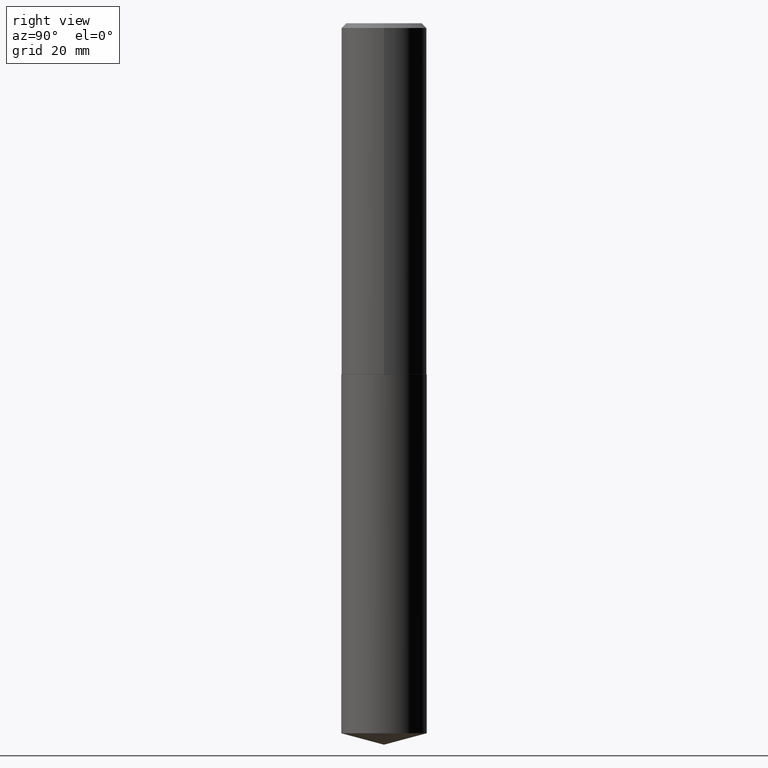
[diagram: clean part render]
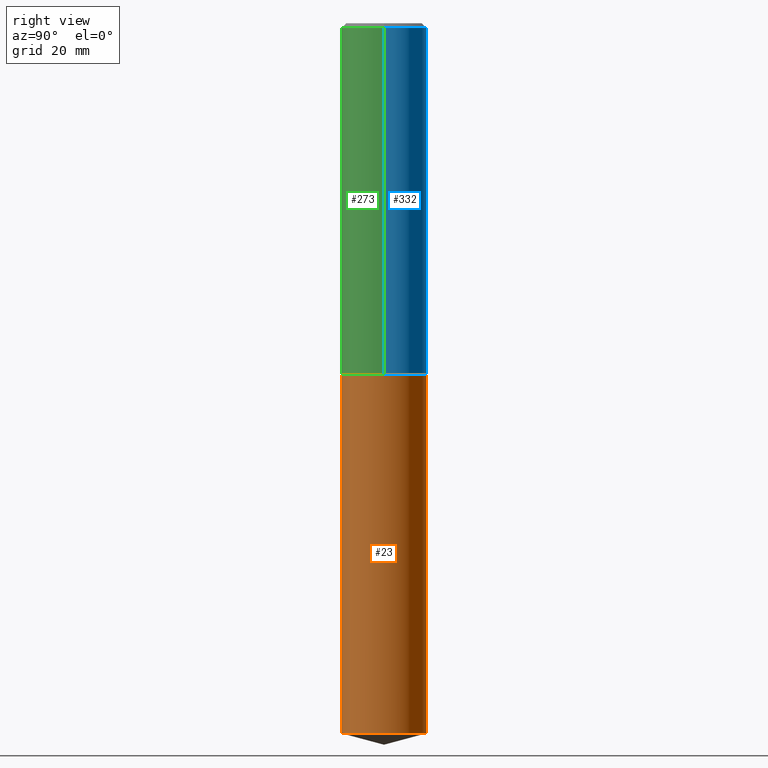
[diagram: same view with three faces highlighted in distinct colors, each labeled with its STEP entity id]
A machine part, right view with three faces highlighted in distinct colors.
Their STEP definitions:

[orange] entity #23 — the highlighted cylindrical surface (partial cylindrical patch) has radius 7.1437 mm, axis along (-0, 0, 1).
#4 = CIRCLE ( 'NONE', #105, 0.2812500000000000000 ) ;
#8 = LINE ( 'NONE', #282, #169 ) ;
#13 = VERTEX_POINT ( 'NONE', #80 ) ;
#15 = VERTEX_POINT ( 'NONE', #199 ) ;
#22 = CARTESIAN_POINT ( 'NONE',  ( 5.655146614303128380E-29, -8.074050596074775072E-15, -2.312500000000000000 ) ) ;
#23 = ADVANCED_FACE ( 'NONE', ( #55 ), #182, .T. ) ;
#30 = CARTESIAN_POINT ( 'NONE',  ( 5.655146614303128380E-29, -8.074050596074775072E-15, -2.312500000000000000 ) ) ;
#45 = EDGE_CURVE ( 'NONE', #236, #150, #4, .T. ) ;
#55 = FACE_OUTER_BOUND ( 'NONE', #79, .T. ) ;
#69 = DIRECTION ( 'NONE',  ( -6.982962677686266711E-15, -1.000000000000000000, 3.885294924322507688E-15 ) ) ;
#73 = EDGE_CURVE ( 'NONE', #150, #13, #191, .T. ) ;
#79 = EDGE_LOOP ( 'NONE', ( #144, #382, #296, #86 ) ) ;
#80 = CARTESIAN_POINT ( 'NONE',  ( 1.998401444325396158E-15, 0.2812499999999919509, -2.312500000000000888 ) ) ;
#86 = ORIENTED_EDGE ( 'NONE', *, *, #206, .F. ) ;
#87 = DIRECTION ( 'NONE',  ( -2.447055092570112405E-29, 3.489209686454046376E-15, 1.000000000000000000 ) ) ;
#91 = CARTESIAN_POINT ( 'NONE',  ( 1.998401444325338176E-15, 0.2812499999999919509, -2.312500000000000888 ) ) ;
#94 = EDGE_CURVE ( 'NONE', #15, #13, #161, .T. ) ;
#105 = AXIS2_PLACEMENT_3D ( 'NONE', #312, #87, #69 ) ;
#115 = DIRECTION ( 'NONE',  ( -2.447055092570112405E-29, 3.489209686454046376E-15, 1.000000000000000000 ) ) ;
#144 = ORIENTED_EDGE ( 'NONE', *, *, #45, .T. ) ;
#150 = VERTEX_POINT ( 'NONE', #340 ) ;
#158 = DIRECTION ( 'NONE',  ( -6.982962677686266711E-15, -1.000000000000000000, 3.885294924322507688E-15 ) ) ;
#161 = CIRCLE ( 'NONE', #209, 0.2812500000000000000 ) ;
#169 = VECTOR ( 'NONE', #366, 39.37007874015748143 ) ;
#182 = CYLINDRICAL_SURFACE ( 'NONE', #285, 0.2812500000000000000 ) ;
#191 = LINE ( 'NONE', #91, #232 ) ;
#199 = CARTESIAN_POINT ( 'NONE',  ( -1.963958253099205714E-15, -0.2812500000000080491, -2.312499999999999112 ) ) ;
#206 = EDGE_CURVE ( 'NONE', #236, #15, #8, .T. ) ;
#209 = AXIS2_PLACEMENT_3D ( 'NONE', #30, #248, #158 ) ;
#224 = CARTESIAN_POINT ( 'NONE',  ( -1.963958253099148128E-15, -0.2812500000000163203, -4.674639289628746752 ) ) ;
#232 = VECTOR ( 'NONE', #308, 39.37007874015748143 ) ;
#236 = VERTEX_POINT ( 'NONE', #224 ) ;
#248 = DIRECTION ( 'NONE',  ( -2.447055092570112405E-29, 3.489209686454046376E-15, 1.000000000000000000 ) ) ;
#282 = CARTESIAN_POINT ( 'NONE',  ( -1.963958253099205714E-15, -0.2812500000000080491, -2.312499999999999112 ) ) ;
#285 = AXIS2_PLACEMENT_3D ( 'NONE', #22, #115, #306 ) ;
#296 = ORIENTED_EDGE ( 'NONE', *, *, #94, .F. ) ;
#306 = DIRECTION ( 'NONE',  ( -6.982962677686266711E-15, -1.000000000000000000, 3.885294924322507688E-15 ) ) ;
#308 = DIRECTION ( 'NONE',  ( -2.447055092570112405E-29, 3.489209686454046771E-15, 1.000000000000000000 ) ) ;
#312 = CARTESIAN_POINT ( 'NONE',  ( 1.143543159234910269E-28, -1.631604988620107915E-14, -4.674639289628747640 ) ) ;
#340 = CARTESIAN_POINT ( 'NONE',  ( 1.998401444325395763E-15, 0.2812499999999836242, -4.674639289628748529 ) ) ;
#366 = DIRECTION ( 'NONE',  ( -2.447055092570112405E-29, 3.489209686454046771E-15, 1.000000000000000000 ) ) ;
#382 = ORIENTED_EDGE ( 'NONE', *, *, #73, .T. ) ;

[blue] entity #332 — the highlighted cylindrical surface (partial cylindrical patch) has radius 7.1438 mm, axis along (-0, 0, 1).
#1 = LINE ( 'NONE', #324, #167 ) ;
#2 = VERTEX_POINT ( 'NONE', #59 ) ;
#10 = DIRECTION ( 'NONE',  ( -2.445468806185136877E-29, 3.491481338843145188E-15, 1.000000000000000000 ) ) ;
#12 = FACE_OUTER_BOUND ( 'NONE', #100, .T. ) ;
#16 = EDGE_CURVE ( 'NONE', #2, #257, #1, .T. ) ;
#21 = ORIENTED_EDGE ( 'NONE', *, *, #16, .F. ) ;
#41 = CARTESIAN_POINT ( 'NONE',  ( -0.2812500000000003331, -6.073903411080069429E-15, -2.312000000000000277 ) ) ;
#52 = DIRECTION ( 'NONE',  ( -2.445468806185136877E-29, 3.491481338843145188E-15, 1.000000000000000000 ) ) ;
#59 = CARTESIAN_POINT ( 'NONE',  ( 0.2812500000000003331, -1.003626310850461766E-14, -2.312000000000000277 ) ) ;
#65 = DIRECTION ( 'NONE',  ( 1.000000000000000000, -6.982962677686265133E-15, 0.000000000000000000 ) ) ;
#68 = CARTESIAN_POINT ( 'NONE',  ( -0.2812500000000001665, 1.998401444325282956E-15, -1.383450494134193109E-29 ) ) ;
#72 = AXIS2_PLACEMENT_3D ( 'NONE', #185, #309, #155 ) ;
#74 = CYLINDRICAL_SURFACE ( 'NONE', #143, 0.2812500000000001665 ) ;
#76 = CARTESIAN_POINT ( 'NONE',  ( 0.2812500000000000000, -2.073067044938111613E-15, -0.03125000000000020123 ) ) ;
#95 = LINE ( 'NONE', #68, #325 ) ;
#100 = EDGE_LOOP ( 'NONE', ( #351, #301, #203, #21 ) ) ;
#101 = DIRECTION ( 'NONE',  ( -2.445468806185136597E-29, 3.491481338843145583E-15, 1.000000000000000000 ) ) ;
#130 = DIRECTION ( 'NONE',  ( 1.000000000000000000, -6.982962677686266711E-15, 4.876176775795936353E-29 ) ) ;
#143 = AXIS2_PLACEMENT_3D ( 'NONE', #299, #101, #130 ) ;
#148 = VERTEX_POINT ( 'NONE', #242 ) ;
#154 = CARTESIAN_POINT ( 'NONE',  ( 5.653923879900035579E-29, -8.072304855405352780E-15, -2.312000000000000277 ) ) ;
#155 = DIRECTION ( 'NONE',  ( 1.000000000000000000, -6.982962677686266711E-15, 0.000000000000000000 ) ) ;
#156 = CIRCLE ( 'NONE', #72, 0.2812500000000000000 ) ;
#157 = EDGE_CURVE ( 'NONE', #2, #241, #245, .T. ) ;
#167 = VECTOR ( 'NONE', #52, 39.37007874015748143 ) ;
#185 = CARTESIAN_POINT ( 'NONE',  ( 7.642090019328600035E-31, -1.091087918388489897E-16, -0.03125000000000020123 ) ) ;
#203 = ORIENTED_EDGE ( 'NONE', *, *, #204, .F. ) ;
#204 = EDGE_CURVE ( 'NONE', #257, #148, #156, .T. ) ;
#221 = EDGE_CURVE ( 'NONE', #241, #148, #95, .T. ) ;
#241 = VERTEX_POINT ( 'NONE', #41 ) ;
#242 = CARTESIAN_POINT ( 'NONE',  ( -0.2812500000000000000, -2.092305379296817195E-15, -0.03125000000000020123 ) ) ;
#245 = CIRCLE ( 'NONE', #293, 0.2812500000000003331 ) ;
#257 = VERTEX_POINT ( 'NONE', #76 ) ;
#278 = DIRECTION ( 'NONE',  ( -2.445468806185136597E-29, 3.491481338843145583E-15, 1.000000000000000000 ) ) ;
#293 = AXIS2_PLACEMENT_3D ( 'NONE', #154, #278, #65 ) ;
#299 = CARTESIAN_POINT ( 'NONE',  ( 0.000000000000000000, 0.000000000000000000, 0.000000000000000000 ) ) ;
#301 = ORIENTED_EDGE ( 'NONE', *, *, #221, .T. ) ;
#309 = DIRECTION ( 'NONE',  ( -2.445468806185136597E-29, 3.491481338843145583E-15, 1.000000000000000000 ) ) ;
#324 = CARTESIAN_POINT ( 'NONE',  ( 0.2812500000000001665, -1.963958253099263696E-15, 1.371424718192607853E-29 ) ) ;
#325 = VECTOR ( 'NONE', #10, 39.37007874015748143 ) ;
#332 = ADVANCED_FACE ( 'NONE', ( #12 ), #74, .T. ) ;
#351 = ORIENTED_EDGE ( 'NONE', *, *, #157, .T. ) ;

[green] entity #273 — the highlighted cylindrical surface (partial cylindrical patch) has radius 7.1438 mm, axis along (-0, 0, 1).
#1 = LINE ( 'NONE', #324, #167 ) ;
#2 = VERTEX_POINT ( 'NONE', #59 ) ;
#3 = CARTESIAN_POINT ( 'NONE',  ( 5.653923879900035579E-29, -8.072304855405352780E-15, -2.312000000000000277 ) ) ;
#10 = DIRECTION ( 'NONE',  ( -2.445468806185136877E-29, 3.491481338843145188E-15, 1.000000000000000000 ) ) ;
#16 = EDGE_CURVE ( 'NONE', #2, #257, #1, .T. ) ;
#19 = EDGE_LOOP ( 'NONE', ( #147, #373, #289, #355 ) ) ;
#41 = CARTESIAN_POINT ( 'NONE',  ( -0.2812500000000003331, -6.073903411080069429E-15, -2.312000000000000277 ) ) ;
#52 = DIRECTION ( 'NONE',  ( -2.445468806185136877E-29, 3.491481338843145188E-15, 1.000000000000000000 ) ) ;
#59 = CARTESIAN_POINT ( 'NONE',  ( 0.2812500000000003331, -1.003626310850461766E-14, -2.312000000000000277 ) ) ;
#68 = CARTESIAN_POINT ( 'NONE',  ( -0.2812500000000001665, 1.998401444325282956E-15, -1.383450494134193109E-29 ) ) ;
#76 = CARTESIAN_POINT ( 'NONE',  ( 0.2812500000000000000, -2.073067044938111613E-15, -0.03125000000000020123 ) ) ;
#93 = DIRECTION ( 'NONE',  ( 1.000000000000000000, -6.982962677686265133E-15, 0.000000000000000000 ) ) ;
#95 = LINE ( 'NONE', #68, #325 ) ;
#103 = DIRECTION ( 'NONE',  ( 1.000000000000000000, -6.982962677686266711E-15, 0.000000000000000000 ) ) ;
#117 = DIRECTION ( 'NONE',  ( -2.445468806185136597E-29, 3.491481338843145583E-15, 1.000000000000000000 ) ) ;
#128 = AXIS2_PLACEMENT_3D ( 'NONE', #3, #117, #93 ) ;
#137 = CARTESIAN_POINT ( 'NONE',  ( 0.000000000000000000, 0.000000000000000000, 0.000000000000000000 ) ) ;
#147 = ORIENTED_EDGE ( 'NONE', *, *, #221, .F. ) ;
#148 = VERTEX_POINT ( 'NONE', #242 ) ;
#162 = AXIS2_PLACEMENT_3D ( 'NONE', #137, #228, #320 ) ;
#167 = VECTOR ( 'NONE', #52, 39.37007874015748143 ) ;
#168 = EDGE_CURVE ( 'NONE', #241, #2, #363, .T. ) ;
#221 = EDGE_CURVE ( 'NONE', #241, #148, #95, .T. ) ;
#228 = DIRECTION ( 'NONE',  ( -2.445468806185136597E-29, 3.491481338843145583E-15, 1.000000000000000000 ) ) ;
#241 = VERTEX_POINT ( 'NONE', #41 ) ;
#242 = CARTESIAN_POINT ( 'NONE',  ( -0.2812500000000000000, -2.092305379296817195E-15, -0.03125000000000020123 ) ) ;
#257 = VERTEX_POINT ( 'NONE', #76 ) ;
#273 = ADVANCED_FACE ( 'NONE', ( #344 ), #385, .T. ) ;
#281 = AXIS2_PLACEMENT_3D ( 'NONE', #291, #290, #103 ) ;
#289 = ORIENTED_EDGE ( 'NONE', *, *, #16, .T. ) ;
#290 = DIRECTION ( 'NONE',  ( -2.445468806185136597E-29, 3.491481338843145583E-15, 1.000000000000000000 ) ) ;
#291 = CARTESIAN_POINT ( 'NONE',  ( 7.642090019328600035E-31, -1.091087918388489897E-16, -0.03125000000000020123 ) ) ;
#320 = DIRECTION ( 'NONE',  ( 1.000000000000000000, -6.982962677686266711E-15, 4.876176775795936353E-29 ) ) ;
#324 = CARTESIAN_POINT ( 'NONE',  ( 0.2812500000000001665, -1.963958253099263696E-15, 1.371424718192607853E-29 ) ) ;
#325 = VECTOR ( 'NONE', #10, 39.37007874015748143 ) ;
#344 = FACE_OUTER_BOUND ( 'NONE', #19, .T. ) ;
#355 = ORIENTED_EDGE ( 'NONE', *, *, #365, .F. ) ;
#363 = CIRCLE ( 'NONE', #128, 0.2812500000000003331 ) ;
#365 = EDGE_CURVE ( 'NONE', #148, #257, #376, .T. ) ;
#373 = ORIENTED_EDGE ( 'NONE', *, *, #168, .T. ) ;
#376 = CIRCLE ( 'NONE', #281, 0.2812500000000000000 ) ;
#385 = CYLINDRICAL_SURFACE ( 'NONE', #162, 0.2812500000000001665 ) ;